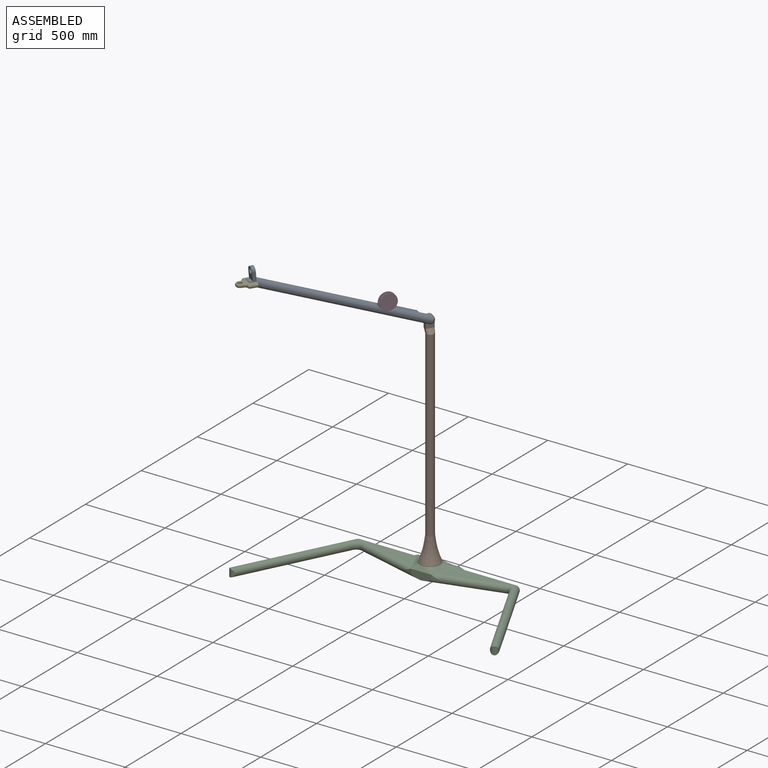
[diagram: assembled view]
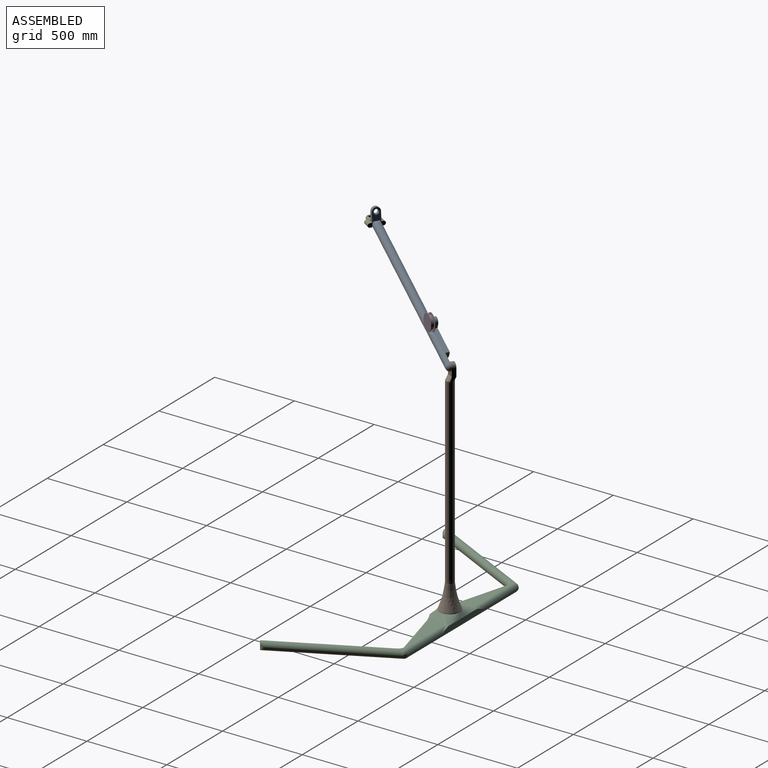
[diagram: assembled view, second angle]
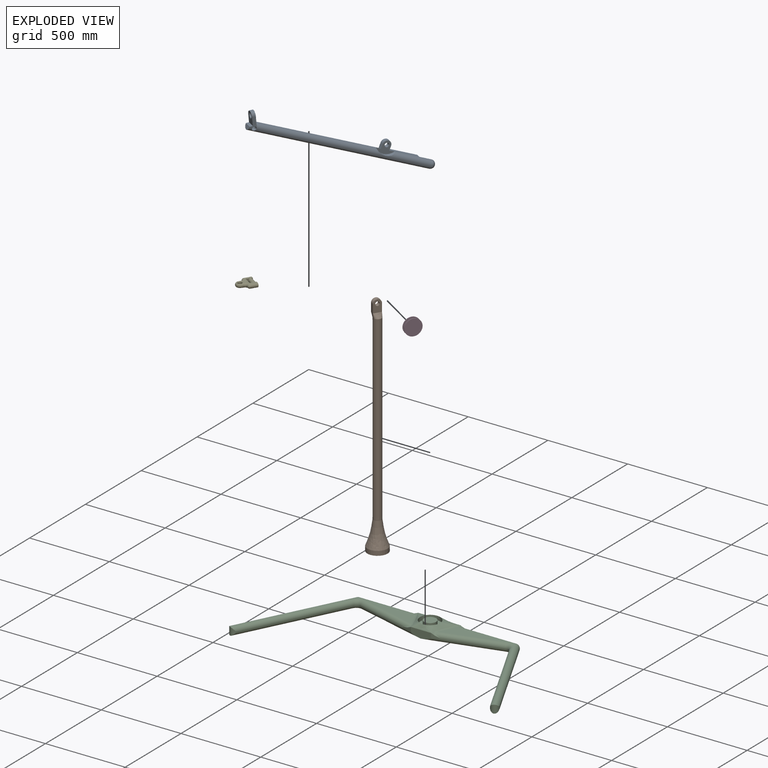
[diagram: exploded view]
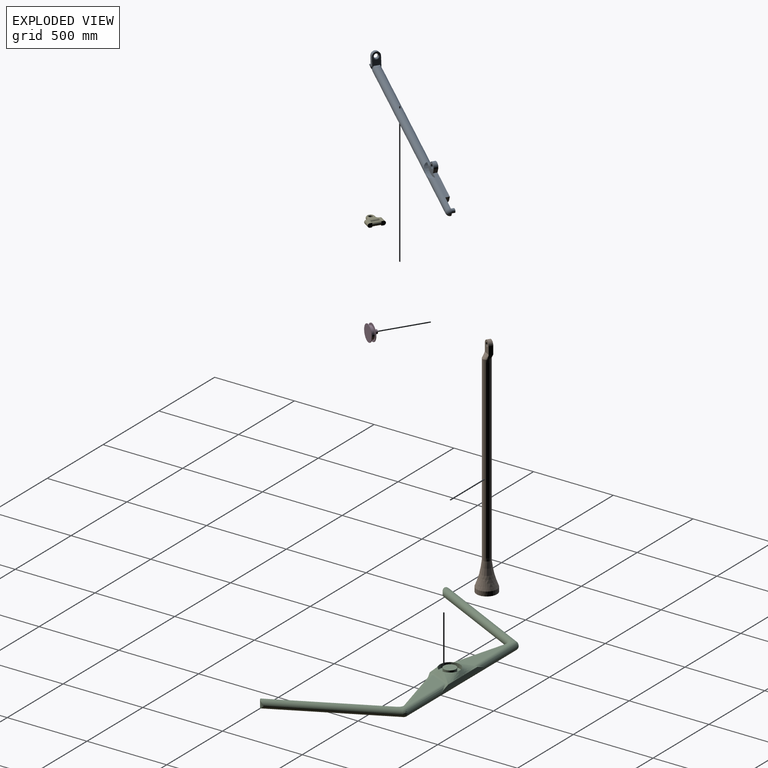
[diagram: exploded view, second angle]
ASSEMBLY  parts=5 mates=4
PART A: 27 faces, bbox 51x1135.8x111 mm
  f0: plane 228.6x76.2mm, normal (-1,0,0), area 7603.5mm2, adj f7,f11,f14,f15,f16,f17,f24
  f1: plane 85.62x50.8mm, normal (0,0.89,0.45), area 2538.9mm2, adj f3,f4,f18,f19,f22,f24
  f2: plane 68.16x50.8mm, normal (0,-0.89,-0.45), area 2454mm2, adj f3,f4,f5,f19,f23
  f3: plane 62.9x50.51mm, normal (-1,0,0), area 1335.7mm2, adj f1,f2,f5,f19,f21,f24
  f4: plane 62.9x50.51mm, normal (1,0,0), area 1335.7mm2, adj f1,f2,f5,f19,f21,f24
  f5: plane 50.8x15.87mm, normal (0,-0.45,0.89), area 901.5mm2, adj f2,f3,f4,f12
  f6: plane 113.59x76.2mm, normal (1,0,0), area 3795.4mm2, adj f7,f13,f14,f15,f16,f17,f24
  f7: plane 177.8x25.4mm, normal (0,0,1), area 4516.1mm2, adj f0,f6,f11,f14,f25
  f8: plane 101.6x50.8mm, normal (-1,0,0), area 4377.7mm2, adj f9,f11,f24,f25,f26
  f9: cylinder r=12.7mm len=25.4mm, axis (1,0,0), area 2026.8mm2, adj f8,f10
  f10: plane 25.4x25.4mm, normal (-1,0,0), area 506.7mm2, adj f9
  f11: plane 50.8x25.4mm, normal (0,1,0), area 1151.9mm2, adj f0,f7,f8,f24
  f12: plane 50.8x25.4mm, normal (0,-1,0), area 1013.4mm2, adj f5,f24
  f13: cylinder r=76.2mm len=113.59mm, axis (1,0,0), area 2830.3mm2, adj f6,f24,f25
  f14: plane 25.4x25.4mm, normal (0,1,0), area 645.2mm2, adj f0,f6,f7,f17
  f15: plane 50.8x25.4mm, normal (0,-1,0), area 783.6mm2, adj f0,f6,f17,f24
  f16: cylinder r=12.7mm len=25.4mm, axis (1,0,0), area 2026.8mm2, adj f0,f6
  f17: cylinder r=25.4mm len=50.8mm, axis (1,0,0), area 2026.8mm2, adj f0,f6,f14,f15
  f18: plane 36.89x15.87mm, normal (0,-0.45,0.89), area 452.1mm2, adj f1,f24
  f19: cylinder r=25.4mm len=50.8mm, axis (0,-0.89,-0.45), area 1700.1mm2, adj f1,f2,f3,f4
  f20: cylinder r=12.7mm len=26.57mm, axis (0,-0.89,-0.45), area 686.7mm2, adj f22,f23
  f21: cylinder r=12.7mm len=50.8mm, axis (1,0,0), area 3718.9mm2, adj f3,f4,f24
  f22: torus R=19.05mm, axis (0,-0.89,-0.45), area 940.5mm2, adj f1,f20
  f23: torus R=19.05mm, axis (0,-0.89,-0.45), area 940.5mm2, adj f2,f20
  f24: cylinder r=25.4mm len=1092.2mm, axis (0,-1,0), area 141986.2mm2, adj f0,f1,f3,f4,f6,f8,f11,f12
  f25: cylinder r=25.4mm len=279.4mm, axis (0,-1,0), area 9373.5mm2, adj f7,f8,f13,f24,f26
  f26: sphere r=25.4mm, area 2026.8mm2, adj f8,f24,f25
PART B: 16 faces, bbox 127x127x1424.9 mm
  f0: plane 76.2x50.8mm, normal (1,0,0), area 3087.3mm2, adj f1,f2,f11,f14,f15
  f1: plane 50.8x25.4mm, normal (0,-1,0), area 1290.3mm2, adj f0,f10,f13,f15
  f2: plane 50.8x25.4mm, normal (0,1,0), area 1290.3mm2, adj f0,f12,f13,f15
  f3: cylinder r=38.1mm len=76.2mm, axis (0,0,-1), area 6080.5mm2, adj f5,f6
  f4: cylinder r=63.5mm len=127mm, axis (0,0,-1), area 11147.6mm2, adj f5,f7
  f5: plane 127x127mm, normal (0,0,-1), area 8107.3mm2, adj f3,f4
  f6: plane 76.2x76.2mm, normal (0,0,-1), area 4560.4mm2, adj f3
  f7: bspline ~152.4x127mm, area 40337.1mm2, adj f4,f8
  f8: extruded ~1143x50.8mm, area 182414.6mm2, adj f7,f9,f10,f11,f12
  f9: bspline ~50.8x25.4mm, area 1308.4mm2, adj f8,f10,f12,f13
  f10: bspline ~41.38x25.4mm, area 656.9mm2, adj f1,f8,f9,f11
  f11: bspline ~50.8x25.4mm, area 1635.6mm2, adj f0,f8,f10,f12
  f12: bspline ~34.51x25.4mm, area 659.9mm2, adj f2,f8,f9,f11
  f13: plane 76.2x50.8mm, normal (-1,0,0), area 3087.3mm2, adj f1,f2,f9,f14,f15
  f14: cylinder r=12.7mm len=25.4mm, axis (-1,0,0), area 2026.8mm2, adj f0,f13
  f15: cylinder r=25.4mm len=50.8mm, axis (-1,0,0), area 2026.8mm2, adj f0,f1,f2,f13
PART C: 42 faces, bbox 1722.1x813.1x94.8 mm
  f0: plane 431.61x111.17mm, normal (0,0,1), area 18488.9mm2, adj f15,f17,f18,f20,f23
  f1: plane 407.44x44.02mm, normal (0,1,0), area 8358.5mm2, adj f7,f8,f9,f20,f24,f25
  f2: plane 73.75x27.65mm, normal (-0.26,-0.96,0), area 845.8mm2, adj f3,f9,f18,f22
  f3: plane 127x49.25mm, normal (0,-1,0), area 5430.3mm2, adj f2,f4,f10,f16,f18
  f4: plane 63.47x34.14mm, normal (0.26,-0.96,0), area 646.9mm2, adj f3,f7,f16,f27
  f5: plane 428.17x108.44mm, normal (0,0,1), area 18569.1mm2, adj f12,f13,f16,f20,f26
  f6: plane 1017.54x128.71mm, normal (0,0,-1), area 61519.7mm2, adj f12,f13,f15,f16,f17,f18,f20
  f7: bspline ~268.76x167.88mm, area 4596.7mm2, adj f1,f4,f8,f10,f25,f26,f27,f29
  f8: bspline ~268.92x90.31mm, area 11570mm2, adj f1,f7,f9,f30,f31,f32
  f9: bspline ~277.58x182.99mm, area 4468.2mm2, adj f1,f2,f8,f10,f22,f23,f24,f39
  f10: bspline ~127x31.47mm, area 3283.6mm2, adj f3,f7,f9,f28
  f11: cylinder r=25.4mm len=48.07mm, axis (0,0,-1), area 0mm2, adj f12
  f12: cylinder r=25.4mm len=689.13mm, axis (0.45,-0.89,0), area 114743.8mm2, adj f5,f6,f11,f13,f21
  f13: torus R=50.8mm, axis (0,0,1), area 3781.2mm2, adj f5,f6,f12,f16
  f14: cylinder r=25.4mm len=48.07mm, axis (0,0,-1), area 0mm2, adj f15
  f15: cylinder r=25.4mm len=689.13mm, axis (-0.45,-0.89,0), area 114743.8mm2, adj f0,f6,f14,f17,f19
  f16: cylinder r=25.4mm len=459.06mm, axis (-0.96,-0.26,0), area 32545.7mm2, adj f3,f4,f5,f6,f13,f18,f27
  f17: torus R=50.8mm, axis (0,0,1), area 3781.2mm2, adj f0,f6,f15,f18
  f18: cylinder r=25.4mm len=459.06mm, axis (0.96,-0.26,0), area 32318.1mm2, adj f0,f2,f3,f6,f16,f17,f22
  f19: sphere r=25.4mm, area 1423mm2, adj f15,f20
  f20: cylinder r=25.4mm len=984.75mm, axis (1,0,0), area 65682.1mm2, adj f0,f1,f5,f6,f19,f21,f24,f25
  f21: sphere r=25.4mm, area 1642.4mm2, adj f12,f20
  f22: bspline ~66.84x41.94mm, area 370.8mm2, adj f2,f9,f18,f23
  f23: bspline ~109.97x54.6mm, area 1135.4mm2, adj f0,f9,f22,f24
  f24: bspline ~72.28x42.74mm, area 551.1mm2, adj f1,f9,f20,f23
  f25: bspline ~78.12x44.05mm, area 552.3mm2, adj f1,f7,f20,f26
  f26: bspline ~109.31x53.94mm, area 1126.8mm2, adj f5,f7,f25,f27
  f27: bspline ~50.13x41.73mm, area 477.9mm2, adj f4,f7,f16,f26
  f28: extruded ~62.9x25.4mm, area 1689mm2, adj f10,f29,f39,f40
  f29: extruded ~58.83x25.4mm, area 1689mm2, adj f7,f28,f30,f40
  f30: extruded ~50.11x39mm, area 1689mm2, adj f8,f29,f31,f40
  f31: extruded ~62.9x25.4mm, area 1689mm2, adj f8,f30,f32,f40
  f32: extruded ~58.83x25.4mm, area 1689mm2, adj f8,f31,f39,f40
  f33: extruded ~30.07x25.4mm, area 1013.4mm2, adj f34,f38,f40,f41
  f34: extruded ~35.3x25.4mm, area 1013.4mm2, adj f33,f35,f40,f41
  f35: extruded ~37.74x25.4mm, area 1013.4mm2, adj f34,f36,f40,f41
  f36: extruded ~30.07x25.4mm, area 1013.4mm2, adj f35,f37,f40,f41
  f37: extruded ~35.3x25.4mm, area 1013.4mm2, adj f36,f38,f40,f41
  f38: extruded ~37.74x25.4mm, area 1013.4mm2, adj f33,f37,f40,f41
  f39: extruded ~50.11x39mm, area 1689mm2, adj f9,f28,f32,f40
  f40: plane 127.05x127.05mm, normal (0,0,1), area 8106.8mm2, adj f28,f29,f30,f31,f32,f33,f34,f35
  f41: plane 76.2x76.2mm, normal (0,0,1), area 4560.5mm2, adj f33,f34,f35,f36,f37,f38
PART D: 9 faces, bbox 101.6x50.8x101.6 mm
  f0: plane 101.6x101.6mm, normal (0,1,0), area 7600.6mm2, adj f1,f7
  f1: cylinder r=50.8mm len=101.6mm, axis (0,1,0), area 1013.4mm2, adj f0,f2
  f2: plane 101.6x101.6mm, normal (0,-1,0), area 3547mm2, adj f1,f3
  f3: cylinder r=38.1mm len=76.2mm, axis (0,1,0), area 4560.4mm2, adj f2,f4
  f4: plane 101.6x101.6mm, normal (0,1,0), area 3547mm2, adj f3,f5
  f5: cylinder r=50.8mm len=101.6mm, axis (0,1,0), area 1013.4mm2, adj f4,f6
  f6: plane 101.6x101.6mm, normal (0,-1,0), area 8107.3mm2, adj f5
  f7: cylinder r=12.7mm len=25.4mm, axis (0,-1,0), area 2026.8mm2, adj f0,f8
  f8: plane 25.4x25.4mm, normal (0,1,0), area 506.7mm2, adj f7
PART E: 30 faces, bbox 101.6x110x34.1 mm
  f0: plane 12.7x12.7mm, normal (-1,0,0), area 34.6mm2, adj f8,f10,f11
  f1: plane 12.7x12.7mm, normal (-1,0,0), area 34.6mm2, adj f8,f9,f11
  f2: plane 12.7x12.7mm, normal (1,0,0), area 34.6mm2, adj f6,f10,f11
  f3: plane 12.7x12.7mm, normal (1,0,0), area 34.6mm2, adj f6,f9,f11
  f4: plane 31.75x25.4mm, normal (-1,0,0), area 299.7mm2, adj f9,f10,f11,f21
  f5: plane 31.75x25.4mm, normal (1,0,0), area 299.7mm2, adj f9,f10,f11,f21
  f6: plane 25.4x25.4mm, normal (0,1,0), area 575.9mm2, adj f2,f3,f9,f10,f12
  f7: cylinder r=12.7mm len=25.4mm, axis (0,0,-1), area 1022.5mm2, adj f22,f23,f24,f25,f26,f27,f28,f29
  f8: plane 25.4x25.4mm, normal (0,1,0), area 575.9mm2, adj f0,f1,f9,f10,f14
  f9: plane 76.2x70.11mm, normal (0,0,1), area 1964.1mm2, adj f1,f3,f4,f5,f6,f8,f12,f14
  f10: plane 76.2x70.11mm, normal (0,0,-1), area 1964.1mm2, adj f0,f2,f4,f5,f6,f8,f12,f14
  f11: cylinder r=12.7mm len=50.8mm, axis (-1,0,0), area 4053.7mm2, adj f0,f1,f2,f3,f4,f5
  f12: cylinder r=12.7mm len=44.45mm, axis (0,-1,0), area 1773.5mm2, adj f6,f9,f10,f13
  f13: sphere r=12.7mm, area 506.7mm2, adj f12,f16
  f14: cylinder r=12.7mm len=44.45mm, axis (0,1,0), area 1773.5mm2, adj f8,f9,f10,f15
  f15: sphere r=12.7mm, area 506.7mm2, adj f14,f18
  f16: torus R=25.4mm, axis (0,0,1), area 1085.2mm2, adj f9,f10,f13,f17
  f17: cylinder r=12.7mm len=25.4mm, axis (0,-1,0), area 352.5mm2, adj f9,f10,f16,f19,f23,f29
  f18: torus R=25.4mm, axis (0,0,1), area 1085.2mm2, adj f9,f10,f15,f20
  f19: torus R=12.7mm, axis (0,0,1), area 1607.7mm2, adj f17,f20,f25,f28
  f20: cylinder r=12.7mm len=25.4mm, axis (0,1,0), area 352.5mm2, adj f9,f10,f18,f19,f24,f26
  f21: cylinder r=12.7mm len=50.8mm, axis (1,0,0), area 2026.8mm2, adj f4,f5,f9,f10
  f22: torus R=17.78mm, axis (0,0,1), area 184.7mm2, adj f7,f10,f23,f24
  f23: bspline ~14.81x12.94mm, area 122.4mm2, adj f7,f17,f22,f25
  f24: bspline ~14.81x12.94mm, area 122.4mm2, adj f7,f20,f22,f25
  f25: torus R=17.78mm, axis (0,0,-1), area 592.4mm2, adj f7,f19,f23,f24
  f26: bspline ~15.51x13.84mm, area 122.4mm2, adj f7,f20,f27,f28
  f27: torus R=17.78mm, axis (0,0,1), area 184.7mm2, adj f7,f9,f26,f29
  f28: torus R=17.78mm, axis (0,0,-1), area 592.4mm2, adj f7,f19,f26,f29
  f29: bspline ~15.51x13.84mm, area 122.4mm2, adj f7,f17,f27,f28
PLACE A rot(axis=(-0.54,0.16,-0.82),38.8deg) t=(-110.68,137.47,1344.35)mm
PLACE B rot(axis=(0,0,-1),32.4deg) t=(-98.04,157.41,-64.56)mm
PLACE C t=(-98.04,-58.3,-115.36)mm fixed
PLACE D rot(axis=(0,0,1),57.6deg) t=(-227.06,-46.09,1485.26)mm
PLACE E rot(axis=(0,0,-1),32.4deg) t=(-637.64,-693.72,1709.21)mm
MATE revolute B.f14 <-> A.f9  axis (-0.84,0.54,0) through (-108.77,164.21,1334.98)mm
MATE revolute A.f21 <-> E.f11  axis (0.84,-0.54,0) through (-627.44,-677.63,1721.91)mm
MATE revolute A.f16 <-> D.f7  axis (0.84,-0.54,0) through (-237.79,-39.29,1485.26)mm
MATE revolute B.f3 <-> C.f41  axis (0,0,-1) through (-98.04,157.41,-39.16)mm
